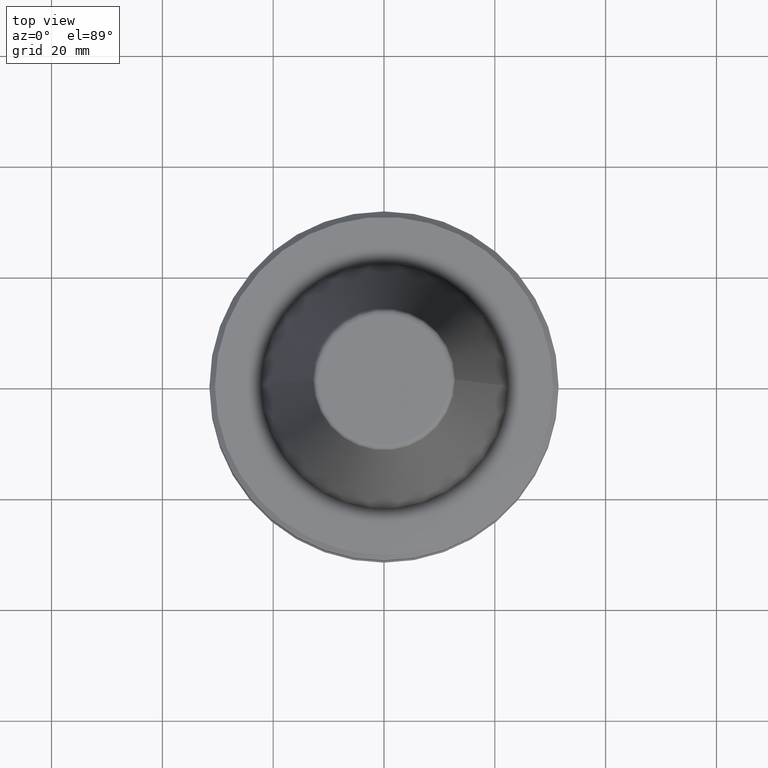
[diagram: clean part render]
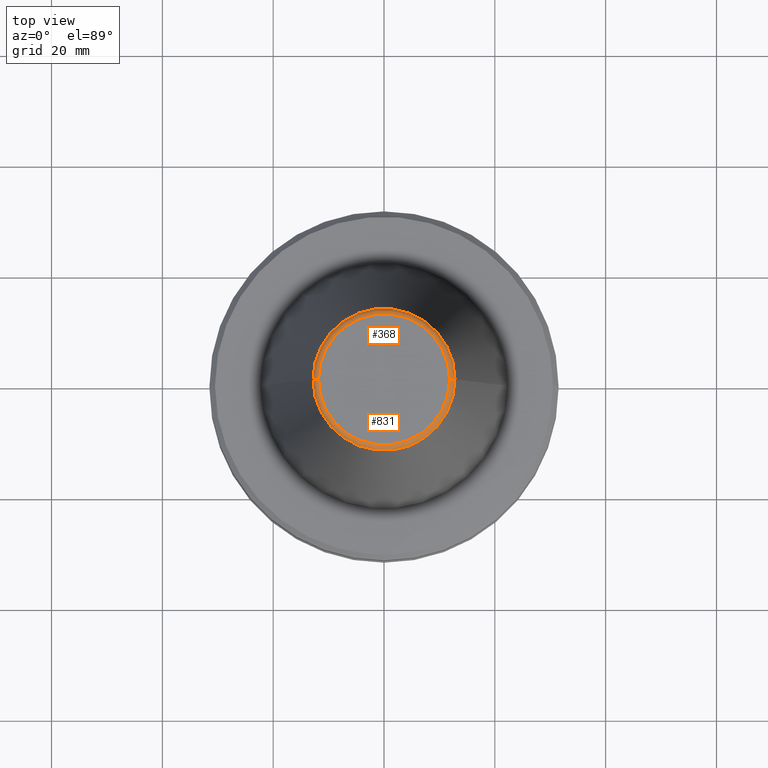
[diagram: same view with one multi-face feature highlighted, each face labeled with its STEP entity id]
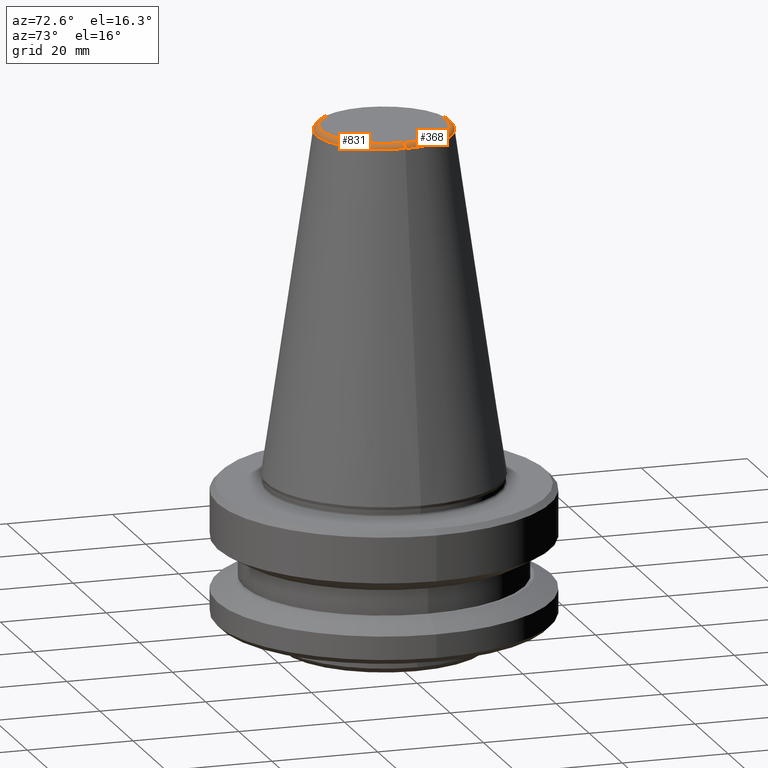
[diagram: same view with one multi-face feature highlighted, each face labeled with its STEP entity id]
A machine part, top view. The highlighted faces form ONE feature: a constant-radius fillet chain: 2 tangent blend faces with common blend radius 1 mm. The faces share edges in the B-rep.
A second angle (auxiliary view) of the same feature is appended — it is thin or edge-on in the first view.
Their STEP definitions:
[1] entity #368 (Torus):
#3 = CARTESIAN_POINT ( 'NONE',  ( -11.82266927716813000, 1.508450817090343500E-015, 65.39999999999945100 ) ) ;
#13 = VERTEX_POINT ( 'NONE', #213 ) ;
#19 = DIRECTION ( 'NONE',  ( 1.000000000000000000, 0.0000000000000000000, 0.0000000000000000000 ) ) ;
#29 = CARTESIAN_POINT ( 'NONE',  ( 0.0000000000000000000, 0.0000000000000000000, 65.39999999999945100 ) ) ;
#35 = EDGE_CURVE ( 'NONE', #527, #62, #381, .T. ) ;
#62 = VERTEX_POINT ( 'NONE', #856 ) ;
#109 = DIRECTION ( 'NONE',  ( 1.000000000000000000, 0.0000000000000000000, 0.0000000000000000000 ) ) ;
#213 = CARTESIAN_POINT ( 'NONE',  ( -12.81220206925781600, 0.0000000000000000000, 64.54430818888745600 ) ) ;
#235 = DIRECTION ( 'NONE',  ( 0.0000000000000000000, 0.0000000000000000000, -1.000000000000000000 ) ) ;
#238 = ORIENTED_EDGE ( 'NONE', *, *, #337, .T. ) ;
#268 = DIRECTION ( 'NONE',  ( -1.000000000000000000, 1.224646799147353900E-016, 0.0000000000000000000 ) ) ;
#293 = AXIS2_PLACEMENT_3D ( 'NONE', #777, #719, #525 ) ;
#295 = DIRECTION ( 'NONE',  ( 0.0000000000000000000, -1.000000000000000000, 0.0000000000000000000 ) ) ;
#333 = CIRCLE ( 'NONE', #588, 1.000000000000314900 ) ;
#337 = EDGE_CURVE ( 'NONE', #527, #13, #724, .T. ) ;
#368 = ADVANCED_FACE ( 'NONE', ( #914 ), #700, .T. ) ;
#381 = CIRCLE ( 'NONE', #400, 1.000000000000320200 ) ;
#400 = AXIS2_PLACEMENT_3D ( 'NONE', #902, #295, #235 ) ;
#454 = DIRECTION ( 'NONE',  ( -0.0000000000000000000, -0.0000000000000000000, 1.000000000000000000 ) ) ;
#461 = AXIS2_PLACEMENT_3D ( 'NONE', #29, #727, #19 ) ;
#488 = CARTESIAN_POINT ( 'NONE',  ( -11.82266927716790800, 1.447859408766143000E-015, 64.39999999999912500 ) ) ;
#495 = ORIENTED_EDGE ( 'NONE', *, *, #35, .F. ) ;
#497 = EDGE_LOOP ( 'NONE', ( #238, #919, #759, #495 ) ) ;
#502 = DIRECTION ( 'NONE',  ( 1.224646799147353200E-016, 1.000000000000000000, 0.0000000000000000000 ) ) ;
#503 = AXIS2_PLACEMENT_3D ( 'NONE', #544, #454, #109 ) ;
#525 = DIRECTION ( 'NONE',  ( 1.000000000000000000, 0.0000000000000000000, 0.0000000000000000000 ) ) ;
#527 = VERTEX_POINT ( 'NONE', #552 ) ;
#529 = CIRCLE ( 'NONE', #461, 11.82266927716813000 ) ;
#544 = CARTESIAN_POINT ( 'NONE',  ( 0.0000000000000000000, 0.0000000000000000000, 64.39999999999912500 ) ) ;
#552 = CARTESIAN_POINT ( 'NONE',  ( 12.81220206925781600, 2.145409868259790500E-015, 64.54430818888745600 ) ) ;
#588 = AXIS2_PLACEMENT_3D ( 'NONE', #488, #502, #268 ) ;
#619 = EDGE_CURVE ( 'NONE', #13, #868, #333, .T. ) ;
#700 = TOROIDAL_SURFACE ( 'NONE', #503, 11.82266927716790800, 1.000000000000315300 ) ;
#719 = DIRECTION ( 'NONE',  ( -0.0000000000000000000, -0.0000000000000000000, 1.000000000000000000 ) ) ;
#724 = CIRCLE ( 'NONE', #293, 12.81220206925781600 ) ;
#727 = DIRECTION ( 'NONE',  ( -0.0000000000000000000, -0.0000000000000000000, 1.000000000000000000 ) ) ;
#759 = ORIENTED_EDGE ( 'NONE', *, *, #879, .F. ) ;
#777 = CARTESIAN_POINT ( 'NONE',  ( 0.0000000000000000000, 0.0000000000000000000, 64.54430818888745600 ) ) ;
#856 = CARTESIAN_POINT ( 'NONE',  ( 11.82266927716813000, 0.0000000000000000000, 65.39999999999945100 ) ) ;
#868 = VERTEX_POINT ( 'NONE', #3 ) ;
#879 = EDGE_CURVE ( 'NONE', #62, #868, #529, .T. ) ;
#902 = CARTESIAN_POINT ( 'NONE',  ( 11.82266927716790800, 0.0000000000000000000, 64.39999999999912500 ) ) ;
#914 = FACE_OUTER_BOUND ( 'NONE', #497, .T. ) ;
#919 = ORIENTED_EDGE ( 'NONE', *, *, #619, .T. ) ;
[2] entity #831 (Torus):
#3 = CARTESIAN_POINT ( 'NONE',  ( -11.82266927716813000, 1.508450817090343500E-015, 65.39999999999945100 ) ) ;
#13 = VERTEX_POINT ( 'NONE', #213 ) ;
#35 = EDGE_CURVE ( 'NONE', #527, #62, #381, .T. ) ;
#62 = VERTEX_POINT ( 'NONE', #856 ) ;
#184 = CARTESIAN_POINT ( 'NONE',  ( 0.0000000000000000000, 0.0000000000000000000, 65.39999999999945100 ) ) ;
#213 = CARTESIAN_POINT ( 'NONE',  ( -12.81220206925781600, 0.0000000000000000000, 64.54430818888745600 ) ) ;
#228 = AXIS2_PLACEMENT_3D ( 'NONE', #184, #480, #340 ) ;
#235 = DIRECTION ( 'NONE',  ( 0.0000000000000000000, 0.0000000000000000000, -1.000000000000000000 ) ) ;
#237 = CARTESIAN_POINT ( 'NONE',  ( 0.0000000000000000000, 0.0000000000000000000, 64.39999999999912500 ) ) ;
#260 = DIRECTION ( 'NONE',  ( -0.0000000000000000000, -0.0000000000000000000, 1.000000000000000000 ) ) ;
#268 = DIRECTION ( 'NONE',  ( -1.000000000000000000, 1.224646799147353900E-016, 0.0000000000000000000 ) ) ;
#283 = EDGE_CURVE ( 'NONE', #13, #527, #961, .T. ) ;
#295 = DIRECTION ( 'NONE',  ( 0.0000000000000000000, -1.000000000000000000, 0.0000000000000000000 ) ) ;
#333 = CIRCLE ( 'NONE', #588, 1.000000000000314900 ) ;
#340 = DIRECTION ( 'NONE',  ( 1.000000000000000000, 0.0000000000000000000, 0.0000000000000000000 ) ) ;
#381 = CIRCLE ( 'NONE', #400, 1.000000000000320200 ) ;
#400 = AXIS2_PLACEMENT_3D ( 'NONE', #902, #295, #235 ) ;
#413 = ORIENTED_EDGE ( 'NONE', *, *, #1001, .F. ) ;
#417 = FACE_OUTER_BOUND ( 'NONE', #509, .T. ) ;
#429 = CARTESIAN_POINT ( 'NONE',  ( 0.0000000000000000000, 0.0000000000000000000, 64.54430818888745600 ) ) ;
#466 = CIRCLE ( 'NONE', #228, 11.82266927716813000 ) ;
#480 = DIRECTION ( 'NONE',  ( -0.0000000000000000000, -0.0000000000000000000, 1.000000000000000000 ) ) ;
#488 = CARTESIAN_POINT ( 'NONE',  ( -11.82266927716790800, 1.447859408766143000E-015, 64.39999999999912500 ) ) ;
#502 = DIRECTION ( 'NONE',  ( 1.224646799147353200E-016, 1.000000000000000000, 0.0000000000000000000 ) ) ;
#509 = EDGE_LOOP ( 'NONE', ( #694, #620, #936, #413 ) ) ;
#518 = AXIS2_PLACEMENT_3D ( 'NONE', #237, #260, #765 ) ;
#527 = VERTEX_POINT ( 'NONE', #552 ) ;
#552 = CARTESIAN_POINT ( 'NONE',  ( 12.81220206925781600, 2.145409868259790500E-015, 64.54430818888745600 ) ) ;
#588 = AXIS2_PLACEMENT_3D ( 'NONE', #488, #502, #268 ) ;
#619 = EDGE_CURVE ( 'NONE', #13, #868, #333, .T. ) ;
#620 = ORIENTED_EDGE ( 'NONE', *, *, #283, .T. ) ;
#668 = DIRECTION ( 'NONE',  ( 1.000000000000000000, 0.0000000000000000000, 0.0000000000000000000 ) ) ;
#694 = ORIENTED_EDGE ( 'NONE', *, *, #619, .F. ) ;
#765 = DIRECTION ( 'NONE',  ( 1.000000000000000000, 0.0000000000000000000, 0.0000000000000000000 ) ) ;
#831 = ADVANCED_FACE ( 'NONE', ( #417 ), #960, .T. ) ;
#856 = CARTESIAN_POINT ( 'NONE',  ( 11.82266927716813000, 0.0000000000000000000, 65.39999999999945100 ) ) ;
#868 = VERTEX_POINT ( 'NONE', #3 ) ;
#898 = DIRECTION ( 'NONE',  ( -0.0000000000000000000, -0.0000000000000000000, 1.000000000000000000 ) ) ;
#902 = CARTESIAN_POINT ( 'NONE',  ( 11.82266927716790800, 0.0000000000000000000, 64.39999999999912500 ) ) ;
#936 = ORIENTED_EDGE ( 'NONE', *, *, #35, .T. ) ;
#960 = TOROIDAL_SURFACE ( 'NONE', #518, 11.82266927716790800, 1.000000000000315300 ) ;
#961 = CIRCLE ( 'NONE', #977, 12.81220206925781600 ) ;
#977 = AXIS2_PLACEMENT_3D ( 'NONE', #429, #898, #668 ) ;
#1001 = EDGE_CURVE ( 'NONE', #868, #62, #466, .T. ) ;